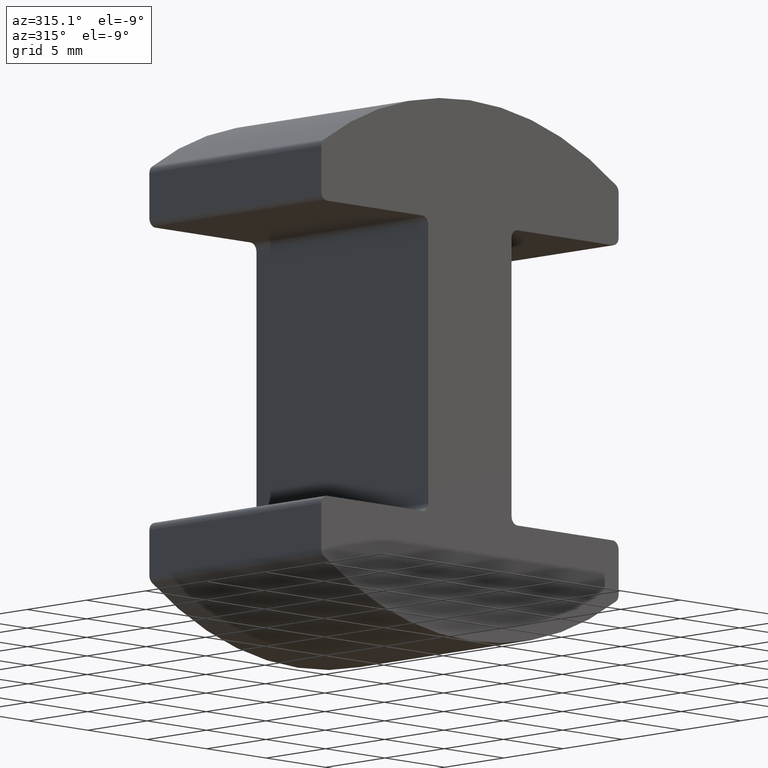
[diagram: clean part render]
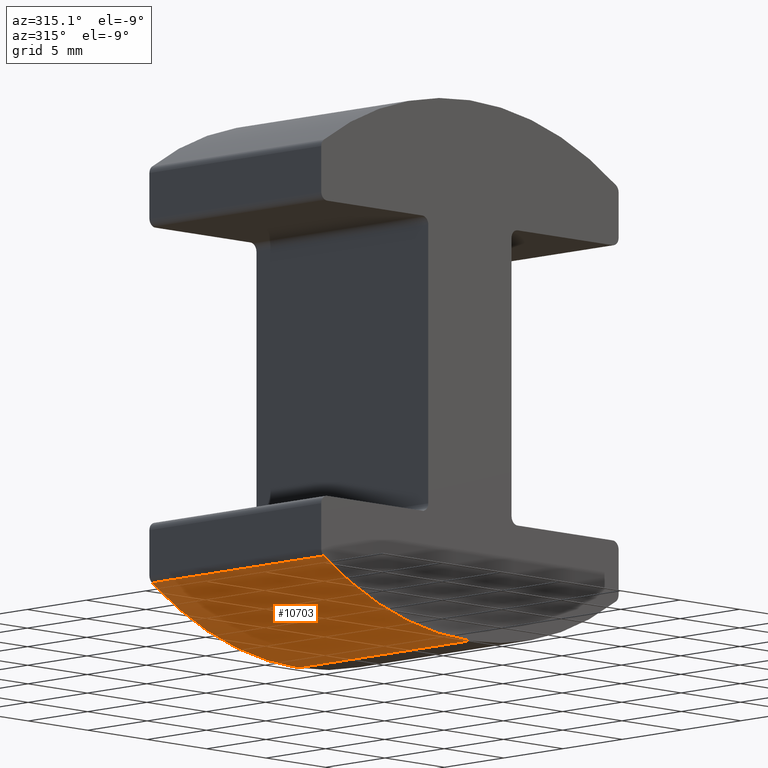
[diagram: same view with one face highlighted and labeled with its STEP entity id]
A machine part, auxiliary view. The second image highlights one B-rep face of the part: STEP entity #10703.
In plain terms, the highlighted cylindrical surface (partial cylindrical patch) has radius 22 mm, axis along (-0, -1, -0).
Its self-contained STEP definition (entity closure, byte-faithful):
#20 = AXIS2_PLACEMENT_3D ( 'NONE', #7559, #5687, #6727 ) ;
#532 = CARTESIAN_POINT ( 'NONE',  ( 1.158013753664825400E-039, 7.250000000000000000, -16.29613300976832600 ) ) ;
#1627 = EDGE_CURVE ( 'NONE', #6171, #5467, #9535, .T. ) ;
#1640 = FACE_OUTER_BOUND ( 'NONE', #9747, .T. ) ;
#2103 = DIRECTION ( 'NONE',  ( -0.0000000000000000000, -1.000000000000000000, 0.0000000000000000000 ) ) ;
#2401 = AXIS2_PLACEMENT_3D ( 'NONE', #3211, #2103, #8806 ) ;
#2495 = CARTESIAN_POINT ( 'NONE',  ( -12.27906976744186100, 7.250000000000000000, -12.55056933758450900 ) ) ;
#2999 = CIRCLE ( 'NONE', #2401, 21.99999999999999600 ) ;
#3074 = CARTESIAN_POINT ( 'NONE',  ( 1.158013753664825400E-039, -7.250000000000000000, -16.29613300976832600 ) ) ;
#3202 = EDGE_CURVE ( 'NONE', #5467, #8451, #4259, .T. ) ;
#3211 = CARTESIAN_POINT ( 'NONE',  ( 1.158013753664825400E-039, -7.250000000000000000, 5.703866990231668800 ) ) ;
#3616 = ORIENTED_EDGE ( 'NONE', *, *, #5606, .T. ) ;
#4259 = CIRCLE ( 'NONE', #5440, 21.99999999999999600 ) ;
#5440 = AXIS2_PLACEMENT_3D ( 'NONE', #11291, #8445, #6455 ) ;
#5467 = VERTEX_POINT ( 'NONE', #8377 ) ;
#5606 = EDGE_CURVE ( 'NONE', #8451, #8817, #9761, .T. ) ;
#5679 = ORIENTED_EDGE ( 'NONE', *, *, #1627, .T. ) ;
#5687 = DIRECTION ( 'NONE',  ( -0.0000000000000000000, -1.000000000000000000, -0.0000000000000000000 ) ) ;
#5786 = VECTOR ( 'NONE', #9081, 1000.000000000000000 ) ;
#6171 = VERTEX_POINT ( 'NONE', #8096 ) ;
#6416 = CYLINDRICAL_SURFACE ( 'NONE', #20, 21.99999999999999600 ) ;
#6455 = DIRECTION ( 'NONE',  ( 0.0000000000000000000, 0.0000000000000000000, -1.000000000000000000 ) ) ;
#6727 = DIRECTION ( 'NONE',  ( 0.0000000000000000000, 0.0000000000000000000, -1.000000000000000000 ) ) ;
#7559 = CARTESIAN_POINT ( 'NONE',  ( 1.158013753664825400E-039, 7.250000000000000000, 5.703866990231668800 ) ) ;
#8096 = CARTESIAN_POINT ( 'NONE',  ( -12.27906976744186100, -7.250000000000000000, -12.55056933758450900 ) ) ;
#8377 = CARTESIAN_POINT ( 'NONE',  ( -12.27906976744186100, 7.250000000000000000, -12.55056933758450900 ) ) ;
#8445 = DIRECTION ( 'NONE',  ( -0.0000000000000000000, -1.000000000000000000, 0.0000000000000000000 ) ) ;
#8451 = VERTEX_POINT ( 'NONE', #10468 ) ;
#8806 = DIRECTION ( 'NONE',  ( 0.0000000000000000000, 0.0000000000000000000, -1.000000000000000000 ) ) ;
#8817 = VERTEX_POINT ( 'NONE', #3074 ) ;
#9081 = DIRECTION ( 'NONE',  ( 0.0000000000000000000, 1.000000000000000000, 0.0000000000000000000 ) ) ;
#9135 = DIRECTION ( 'NONE',  ( -0.0000000000000000000, -1.000000000000000000, -0.0000000000000000000 ) ) ;
#9535 = LINE ( 'NONE', #2495, #5786 ) ;
#9747 = EDGE_LOOP ( 'NONE', ( #10513, #3616, #10377, #5679 ) ) ;
#9761 = LINE ( 'NONE', #532, #11671 ) ;
#9956 = EDGE_CURVE ( 'NONE', #6171, #8817, #2999, .T. ) ;
#10377 = ORIENTED_EDGE ( 'NONE', *, *, #9956, .F. ) ;
#10468 = CARTESIAN_POINT ( 'NONE',  ( 1.158013753664825400E-039, 7.250000000000000000, -16.29613300976832600 ) ) ;
#10513 = ORIENTED_EDGE ( 'NONE', *, *, #3202, .T. ) ;
#10703 = ADVANCED_FACE ( 'NONE', ( #1640 ), #6416, .T. ) ;
#11291 = CARTESIAN_POINT ( 'NONE',  ( 1.158013753664825400E-039, 7.250000000000000000, 5.703866990231668800 ) ) ;
#11671 = VECTOR ( 'NONE', #9135, 1000.000000000000000 ) ;